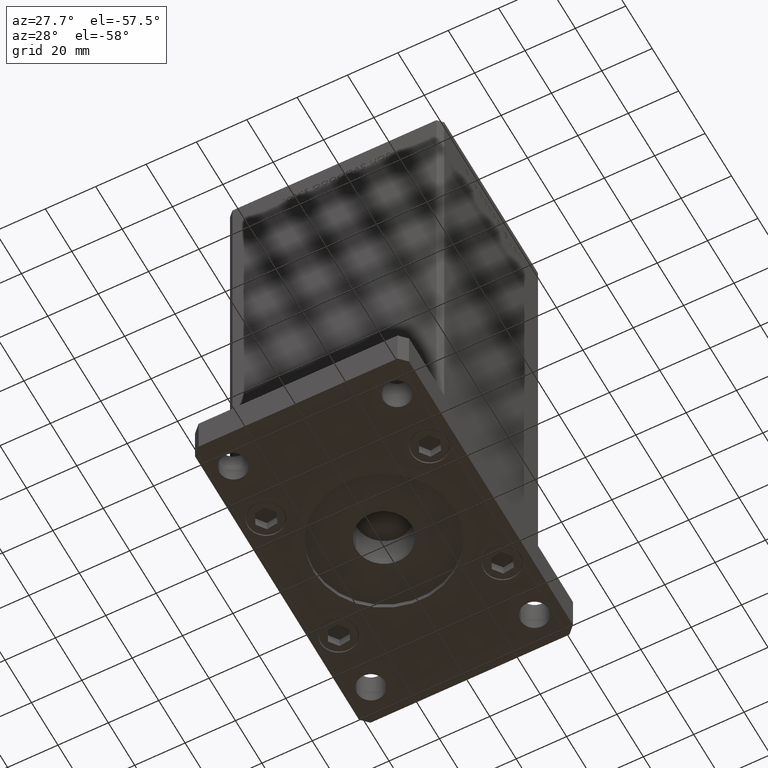
[diagram: clean part render]
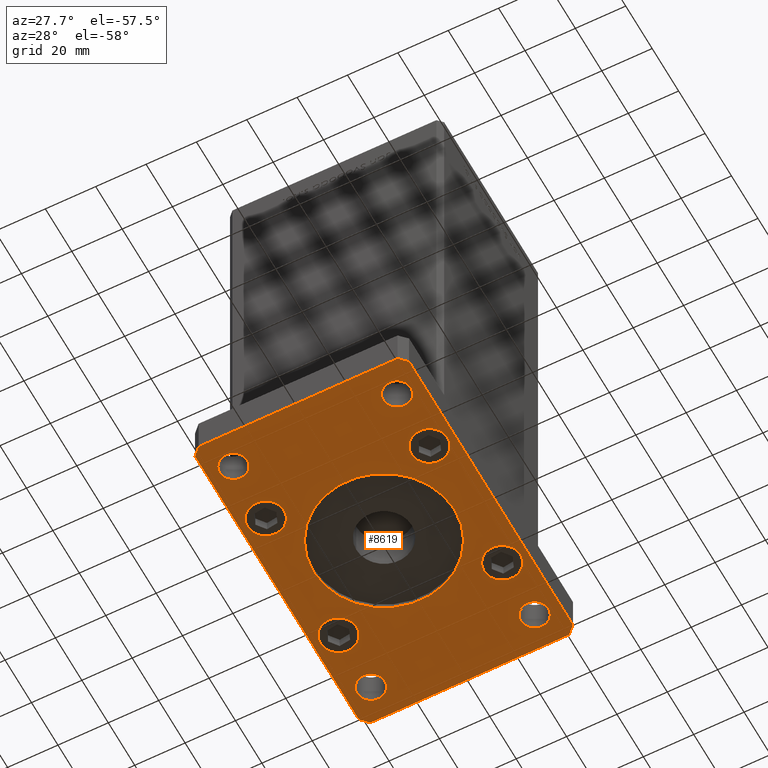
[diagram: same view with one face highlighted and labeled with its STEP entity id]
A machine part, auxiliary view. The second image highlights one B-rep face of the part: STEP entity #8619.
In plain terms, the highlighted planar face has unit normal (0, 0, 1).
Its self-contained STEP definition (entity closure, byte-faithful):
#218 = ORIENTED_EDGE ( 'NONE', *, *, #5104, .F. ) ;
#385 = ORIENTED_EDGE ( 'NONE', *, *, #1732, .T. ) ;
#557 = CARTESIAN_POINT ( 'NONE',  ( -38.00000000000000000, 52.00000000000000000, 0.000000000000000000 ) ) ;
#663 = VECTOR ( 'NONE', #10836, 1000.000000000000000 ) ;
#729 = VERTEX_POINT ( 'NONE', #39976 ) ;
#1094 = CIRCLE ( 'NONE', #19187, 7.249999999999999112 ) ;
#1253 = PLANE ( 'NONE',  #9013 ) ;
#1575 = CIRCLE ( 'NONE', #41133, 7.249999999999999112 ) ;
#1580 = AXIS2_PLACEMENT_3D ( 'NONE', #23667, #15585, #3973 ) ;
#1667 = EDGE_CURVE ( 'NONE', #50452, #33527, #34710, .T. ) ;
#1678 = ORIENTED_EDGE ( 'NONE', *, *, #25455, .T. ) ;
#1732 = EDGE_CURVE ( 'NONE', #29484, #18986, #18389, .T. ) ;
#1855 = EDGE_CURVE ( 'NONE', #18986, #29484, #17547, .T. ) ;
#1865 = DIRECTION ( 'NONE',  ( 0.7071067811865459074, 0.7071067811865491270, 0.000000000000000000 ) ) ;
#1975 = CIRCLE ( 'NONE', #8866, 5.499999999999991118 ) ;
#2219 = LINE ( 'NONE', #10317, #663 ) ;
#2808 = EDGE_CURVE ( 'NONE', #33732, #42825, #25294, .T. ) ;
#2828 = EDGE_CURVE ( 'NONE', #17192, #34115, #23802, .T. ) ;
#2845 = AXIS2_PLACEMENT_3D ( 'NONE', #24288, #16216, #52870 ) ;
#2892 = VERTEX_POINT ( 'NONE', #52114 ) ;
#3039 = DIRECTION ( 'NONE',  ( 1.000000000000000000, 0.000000000000000000, 0.000000000000000000 ) ) ;
#3250 = CARTESIAN_POINT ( 'NONE',  ( -32.50000000000000000, 52.00000000000000000, 0.000000000000000000 ) ) ;
#3306 = CARTESIAN_POINT ( 'NONE',  ( -32.50000000000000000, -27.50000000000000000, 0.000000000000000000 ) ) ;
#3624 = EDGE_LOOP ( 'NONE', ( #32131, #20168 ) ) ;
#3929 = CARTESIAN_POINT ( 'NONE',  ( 37.99999999999999289, 51.99999999999999289, 0.000000000000000000 ) ) ;
#3973 = DIRECTION ( 'NONE',  ( 1.000000000000000000, 0.000000000000000000, 0.000000000000000000 ) ) ;
#4020 = DIRECTION ( 'NONE',  ( 1.000000000000000000, 0.000000000000000000, 0.000000000000000000 ) ) ;
#4032 = EDGE_CURVE ( 'NONE', #42825, #33732, #14138, .T. ) ;
#4312 = ORIENTED_EDGE ( 'NONE', *, *, #23713, .F. ) ;
#5035 = DIRECTION ( 'NONE',  ( 0.000000000000000000, 0.000000000000000000, 1.000000000000000000 ) ) ;
#5104 = EDGE_CURVE ( 'NONE', #50167, #5231, #35403, .T. ) ;
#5231 = VERTEX_POINT ( 'NONE', #45074 ) ;
#5251 = EDGE_LOOP ( 'NONE', ( #385, #43917 ) ) ;
#5772 = DIRECTION ( 'NONE',  ( 0.000000000000000000, 0.000000000000000000, 1.000000000000000000 ) ) ;
#5838 = DIRECTION ( 'NONE',  ( 0.000000000000000000, 0.000000000000000000, 1.000000000000000000 ) ) ;
#5868 = EDGE_CURVE ( 'NONE', #37250, #41574, #28856, .T. ) ;
#6084 = CARTESIAN_POINT ( 'NONE',  ( 42.50000000000000000, 62.00000000000000711, 0.000000000000000000 ) ) ;
#6202 = CIRCLE ( 'NONE', #13097, 7.249999999999999112 ) ;
#6249 = CARTESIAN_POINT ( 'NONE',  ( -32.50000000000000711, 27.50000000000000000, 0.000000000000000000 ) ) ;
#6252 = DIRECTION ( 'NONE',  ( 1.000000000000000000, 0.000000000000000000, 0.000000000000000000 ) ) ;
#6398 = CARTESIAN_POINT ( 'NONE',  ( 27.00000000000001421, 51.99999999999999289, 0.000000000000000000 ) ) ;
#6418 = DIRECTION ( 'NONE',  ( -1.000000000000000000, -3.513364001978340512E-16, 0.000000000000000000 ) ) ;
#7477 = CARTESIAN_POINT ( 'NONE',  ( -39.75000000000000711, 27.50000000000000000, 0.000000000000000000 ) ) ;
#7885 = CARTESIAN_POINT ( 'NONE',  ( 42.50000000000000000, -61.99999999999988631, 0.000000000000000000 ) ) ;
#8084 = VERTEX_POINT ( 'NONE', #48635 ) ;
#8619 = ADVANCED_FACE ( 'NONE', ( #40075, #36035, #52501, #48706, #11789, #44640, #36561, #24188, #53032, #16110 ), #1253, .F. ) ;
#8866 = AXIS2_PLACEMENT_3D ( 'NONE', #18147, #34552, #6252 ) ;
#9013 = AXIS2_PLACEMENT_3D ( 'NONE', #37632, #5035, #34118 ) ;
#9296 = CARTESIAN_POINT ( 'NONE',  ( 37.99999999999997868, -52.00000000000000711, 0.000000000000000000 ) ) ;
#9423 = EDGE_LOOP ( 'NONE', ( #39081, #26647 ) ) ;
#9783 = DIRECTION ( 'NONE',  ( 0.000000000000000000, 0.000000000000000000, 1.000000000000000000 ) ) ;
#10191 = AXIS2_PLACEMENT_3D ( 'NONE', #3306, #52388, #15468 ) ;
#10317 = CARTESIAN_POINT ( 'NONE',  ( -42.49999999999999289, -62.00000000000001421, 0.000000000000000000 ) ) ;
#10725 = CARTESIAN_POINT ( 'NONE',  ( 39.50000000000002842, 65.00000000000002842, 0.000000000000000000 ) ) ;
#10836 = DIRECTION ( 'NONE',  ( 0.7071067811865483499, -0.7071067811865466846, 0.000000000000000000 ) ) ;
#11340 = ORIENTED_EDGE ( 'NONE', *, *, #31188, .T. ) ;
#11672 = ORIENTED_EDGE ( 'NONE', *, *, #1667, .T. ) ;
#11734 = EDGE_LOOP ( 'NONE', ( #11340, #11672 ) ) ;
#11789 = FACE_BOUND ( 'NONE', #3624, .T. ) ;
#12322 = AXIS2_PLACEMENT_3D ( 'NONE', #41042, #25150, #28914 ) ;
#12372 = LINE ( 'NONE', #16426, #38470 ) ;
#12516 = CARTESIAN_POINT ( 'NONE',  ( -42.50000000000002132, 62.00000000000000711, 0.000000000000000000 ) ) ;
#12762 = CIRCLE ( 'NONE', #10191, 7.249999999999999112 ) ;
#12804 = VERTEX_POINT ( 'NONE', #7477 ) ;
#12905 = EDGE_CURVE ( 'NONE', #729, #8084, #35766, .T. ) ;
#12915 = CARTESIAN_POINT ( 'NONE',  ( 32.50000000000000000, 51.99999999999999289, 0.000000000000000000 ) ) ;
#13097 = AXIS2_PLACEMENT_3D ( 'NONE', #28439, #19322, #35730 ) ;
#13400 = CARTESIAN_POINT ( 'NONE',  ( 39.50000000000001421, -64.99999999999988631, 0.000000000000000000 ) ) ;
#13800 = AXIS2_PLACEMENT_3D ( 'NONE', #12915, #49564, #4020 ) ;
#14138 = CIRCLE ( 'NONE', #27884, 5.499999999999994671 ) ;
#14182 = CARTESIAN_POINT ( 'NONE',  ( -32.49999999999997868, -52.00000000000000711, 0.000000000000000000 ) ) ;
#15039 = EDGE_CURVE ( 'NONE', #52323, #44048, #43602, .T. ) ;
#15216 = CARTESIAN_POINT ( 'NONE',  ( -39.50000000000003553, 65.00000000000000000, 0.000000000000000000 ) ) ;
#15235 = VECTOR ( 'NONE', #6418, 1000.000000000000000 ) ;
#15413 = EDGE_LOOP ( 'NONE', ( #1678, #44969 ) ) ;
#15468 = DIRECTION ( 'NONE',  ( 1.000000000000000000, 0.000000000000000000, 0.000000000000000000 ) ) ;
#15585 = DIRECTION ( 'NONE',  ( 0.000000000000000000, 0.000000000000000000, 1.000000000000000000 ) ) ;
#15970 = EDGE_CURVE ( 'NONE', #34748, #24006, #12372, .T. ) ;
#16043 = ORIENTED_EDGE ( 'NONE', *, *, #21395, .T. ) ;
#16110 = FACE_BOUND ( 'NONE', #47382, .T. ) ;
#16216 = DIRECTION ( 'NONE',  ( 0.000000000000000000, 0.000000000000000000, 1.000000000000000000 ) ) ;
#16426 = CARTESIAN_POINT ( 'NONE',  ( -39.50000000000000000, -65.00000000000000000, 0.000000000000000000 ) ) ;
#16534 = AXIS2_PLACEMENT_3D ( 'NONE', #50883, #22839, #38739 ) ;
#16576 = ORIENTED_EDGE ( 'NONE', *, *, #28024, .F. ) ;
#16979 = EDGE_CURVE ( 'NONE', #2892, #34748, #2219, .T. ) ;
#17192 = VERTEX_POINT ( 'NONE', #26098 ) ;
#17515 = VERTEX_POINT ( 'NONE', #51357 ) ;
#17547 = CIRCLE ( 'NONE', #2845, 7.249999999999999112 ) ;
#17880 = DIRECTION ( 'NONE',  ( 0.000000000000000000, 0.000000000000000000, 1.000000000000000000 ) ) ;
#17985 = CARTESIAN_POINT ( 'NONE',  ( 32.49999999999997868, -52.00000000000000711, 0.000000000000000000 ) ) ;
#18147 = CARTESIAN_POINT ( 'NONE',  ( 32.50000000000000000, 51.99999999999999289, 0.000000000000000000 ) ) ;
#18389 = CIRCLE ( 'NONE', #35541, 7.249999999999999112 ) ;
#18440 = ORIENTED_EDGE ( 'NONE', *, *, #31943, .F. ) ;
#18816 = AXIS2_PLACEMENT_3D ( 'NONE', #33195, #49654, #33726 ) ;
#18986 = VERTEX_POINT ( 'NONE', #50439 ) ;
#19136 = CARTESIAN_POINT ( 'NONE',  ( -39.50000000000003553, 65.00000000000000000, 0.000000000000000000 ) ) ;
#19187 = AXIS2_PLACEMENT_3D ( 'NONE', #6249, #17880, #25945 ) ;
#19322 = DIRECTION ( 'NONE',  ( 0.000000000000000000, 0.000000000000000000, 1.000000000000000000 ) ) ;
#19794 = CARTESIAN_POINT ( 'NONE',  ( -39.50000000000000000, -65.00000000000000000, 0.000000000000000000 ) ) ;
#19976 = DIRECTION ( 'NONE',  ( 0.000000000000000000, 0.000000000000000000, 1.000000000000000000 ) ) ;
#20054 = CARTESIAN_POINT ( 'NONE',  ( 42.50000000000000000, 62.00000000000000711, 0.000000000000000000 ) ) ;
#20168 = ORIENTED_EDGE ( 'NONE', *, *, #4032, .T. ) ;
#20305 = ORIENTED_EDGE ( 'NONE', *, *, #22902, .F. ) ;
#20566 = EDGE_LOOP ( 'NONE', ( #23724, #46975 ) ) ;
#21395 = EDGE_CURVE ( 'NONE', #41574, #37250, #30894, .T. ) ;
#21404 = LINE ( 'NONE', #12516, #43771 ) ;
#21419 = EDGE_LOOP ( 'NONE', ( #46801, #23800, #18440, #218, #20305, #16576, #22171, #4312 ) ) ;
#21517 = CARTESIAN_POINT ( 'NONE',  ( 0.000000000000000000, 0.000000000000000000, 0.000000000000000000 ) ) ;
#21751 = VERTEX_POINT ( 'NONE', #6398 ) ;
#22030 = AXIS2_PLACEMENT_3D ( 'NONE', #14182, #5838, #39212 ) ;
#22171 = ORIENTED_EDGE ( 'NONE', *, *, #2828, .F. ) ;
#22270 = LINE ( 'NONE', #6084, #38646 ) ;
#22839 = DIRECTION ( 'NONE',  ( 0.000000000000000000, 0.000000000000000000, 1.000000000000000000 ) ) ;
#22902 = EDGE_CURVE ( 'NONE', #17515, #50167, #40080, .T. ) ;
#23667 = CARTESIAN_POINT ( 'NONE',  ( -32.49999999999997868, -52.00000000000000711, 0.000000000000000000 ) ) ;
#23713 = EDGE_CURVE ( 'NONE', #24006, #17192, #26394, .T. ) ;
#23724 = ORIENTED_EDGE ( 'NONE', *, *, #36047, .T. ) ;
#23800 = ORIENTED_EDGE ( 'NONE', *, *, #16979, .F. ) ;
#23802 = LINE ( 'NONE', #7885, #36467 ) ;
#24006 = VERTEX_POINT ( 'NONE', #13400 ) ;
#24188 = FACE_BOUND ( 'NONE', #5251, .T. ) ;
#24288 = CARTESIAN_POINT ( 'NONE',  ( 32.50000000000000000, 27.50000000000000000, 0.000000000000000000 ) ) ;
#24769 = DIRECTION ( 'NONE',  ( 1.000000000000000000, 1.405345600791337191E-15, 0.000000000000000000 ) ) ;
#25150 = DIRECTION ( 'NONE',  ( 0.000000000000000000, 0.000000000000000000, 1.000000000000000000 ) ) ;
#25181 = ORIENTED_EDGE ( 'NONE', *, *, #5868, .T. ) ;
#25294 = CIRCLE ( 'NONE', #32157, 5.499999999999994671 ) ;
#25455 = EDGE_CURVE ( 'NONE', #8084, #729, #32518, .T. ) ;
#25620 = VECTOR ( 'NONE', #1865, 1000.000000000000114 ) ;
#25732 = CARTESIAN_POINT ( 'NONE',  ( -32.50000000000000711, 27.50000000000000000, 0.000000000000000000 ) ) ;
#25754 = AXIS2_PLACEMENT_3D ( 'NONE', #46183, #5772, #30552 ) ;
#25945 = DIRECTION ( 'NONE',  ( 1.000000000000000000, 0.000000000000000000, 0.000000000000000000 ) ) ;
#26098 = CARTESIAN_POINT ( 'NONE',  ( 42.50000000000000000, -61.99999999999988631, 0.000000000000000000 ) ) ;
#26394 = LINE ( 'NONE', #34203, #25620 ) ;
#26647 = ORIENTED_EDGE ( 'NONE', *, *, #47929, .T. ) ;
#26816 = CARTESIAN_POINT ( 'NONE',  ( 28.00000000000000000, 3.429011037612589276E-15, 0.000000000000000000 ) ) ;
#27884 = AXIS2_PLACEMENT_3D ( 'NONE', #3250, #19976, #36388 ) ;
#27921 = VECTOR ( 'NONE', #52409, 1000.000000000000000 ) ;
#28024 = EDGE_CURVE ( 'NONE', #34115, #17515, #22270, .T. ) ;
#28221 = DIRECTION ( 'NONE',  ( 1.000000000000000000, 0.000000000000000000, 0.000000000000000000 ) ) ;
#28439 = CARTESIAN_POINT ( 'NONE',  ( 32.50000000000000000, -27.50000000000000000, 0.000000000000000000 ) ) ;
#28627 = DIRECTION ( 'NONE',  ( 0.000000000000000000, 1.000000000000000000, 0.000000000000000000 ) ) ;
#28856 = CIRCLE ( 'NONE', #44299, 5.499999999999998224 ) ;
#28905 = CARTESIAN_POINT ( 'NONE',  ( 25.25000000000000000, -27.50000000000000000, 0.000000000000000000 ) ) ;
#28914 = DIRECTION ( 'NONE',  ( 1.000000000000000000, 0.000000000000000000, 0.000000000000000000 ) ) ;
#28940 = DIRECTION ( 'NONE',  ( 2.238352872228137677E-16, -1.000000000000000000, 0.000000000000000000 ) ) ;
#29484 = VERTEX_POINT ( 'NONE', #51028 ) ;
#30077 = DIRECTION ( 'NONE',  ( -0.7071067811865417996, 0.7071067811865532349, 0.000000000000000000 ) ) ;
#30385 = EDGE_CURVE ( 'NONE', #44048, #52323, #44584, .T. ) ;
#30552 = DIRECTION ( 'NONE',  ( 1.000000000000000000, 0.000000000000000000, 0.000000000000000000 ) ) ;
#30871 = EDGE_CURVE ( 'NONE', #12804, #52447, #1575, .T. ) ;
#30894 = CIRCLE ( 'NONE', #25754, 5.499999999999998224 ) ;
#31188 = EDGE_CURVE ( 'NONE', #33527, #50452, #12762, .T. ) ;
#31299 = DIRECTION ( 'NONE',  ( 1.000000000000000000, 0.000000000000000000, 0.000000000000000000 ) ) ;
#31943 = EDGE_CURVE ( 'NONE', #5231, #2892, #21404, .T. ) ;
#32131 = ORIENTED_EDGE ( 'NONE', *, *, #2808, .T. ) ;
#32157 = AXIS2_PLACEMENT_3D ( 'NONE', #44252, #39961, #3039 ) ;
#32518 = CIRCLE ( 'NONE', #1580, 5.499999999999994671 ) ;
#33195 = CARTESIAN_POINT ( 'NONE',  ( 0.000000000000000000, 0.000000000000000000, 0.000000000000000000 ) ) ;
#33361 = DIRECTION ( 'NONE',  ( 0.000000000000000000, 0.000000000000000000, -1.000000000000000000 ) ) ;
#33527 = VERTEX_POINT ( 'NONE', #38853 ) ;
#33726 = DIRECTION ( 'NONE',  ( -1.000000000000000000, 0.000000000000000000, 0.000000000000000000 ) ) ;
#33732 = VERTEX_POINT ( 'NONE', #557 ) ;
#33998 = EDGE_LOOP ( 'NONE', ( #47841, #51666 ) ) ;
#34115 = VERTEX_POINT ( 'NONE', #20054 ) ;
#34118 = DIRECTION ( 'NONE',  ( 1.000000000000000000, 0.000000000000000000, -0.000000000000000000 ) ) ;
#34203 = CARTESIAN_POINT ( 'NONE',  ( 39.50000000000001421, -64.99999999999988631, 0.000000000000000000 ) ) ;
#34552 = DIRECTION ( 'NONE',  ( 0.000000000000000000, 0.000000000000000000, 1.000000000000000000 ) ) ;
#34654 = DIRECTION ( 'NONE',  ( 0.000000000000000000, 0.000000000000000000, 1.000000000000000000 ) ) ;
#34710 = CIRCLE ( 'NONE', #12322, 7.249999999999999112 ) ;
#34748 = VERTEX_POINT ( 'NONE', #19794 ) ;
#35283 = CIRCLE ( 'NONE', #13800, 5.499999999999991118 ) ;
#35403 = LINE ( 'NONE', #15216, #27921 ) ;
#35541 = AXIS2_PLACEMENT_3D ( 'NONE', #47217, #9783, #31299 ) ;
#35730 = DIRECTION ( 'NONE',  ( 1.000000000000000000, 0.000000000000000000, 0.000000000000000000 ) ) ;
#35766 = CIRCLE ( 'NONE', #22030, 5.499999999999994671 ) ;
#36035 = FACE_OUTER_BOUND ( 'NONE', #21419, .T. ) ;
#36047 = EDGE_CURVE ( 'NONE', #21751, #48395, #35283, .T. ) ;
#36388 = DIRECTION ( 'NONE',  ( 1.000000000000000000, 0.000000000000000000, 0.000000000000000000 ) ) ;
#36467 = VECTOR ( 'NONE', #28627, 1000.000000000000000 ) ;
#36561 = FACE_BOUND ( 'NONE', #40549, .T. ) ;
#37250 = VERTEX_POINT ( 'NONE', #9296 ) ;
#37632 = CARTESIAN_POINT ( 'NONE',  ( 0.000000000000000000, 0.000000000000000000, 0.000000000000000000 ) ) ;
#38470 = VECTOR ( 'NONE', #24769, 1000.000000000000000 ) ;
#38646 = VECTOR ( 'NONE', #30077, 1000.000000000000000 ) ;
#38739 = DIRECTION ( 'NONE',  ( 1.000000000000000000, 0.000000000000000000, 0.000000000000000000 ) ) ;
#38853 = CARTESIAN_POINT ( 'NONE',  ( -39.75000000000000000, -27.50000000000000000, 0.000000000000000000 ) ) ;
#39081 = ORIENTED_EDGE ( 'NONE', *, *, #30871, .T. ) ;
#39212 = DIRECTION ( 'NONE',  ( 1.000000000000000000, 0.000000000000000000, 0.000000000000000000 ) ) ;
#39820 = ORIENTED_EDGE ( 'NONE', *, *, #40863, .T. ) ;
#39961 = DIRECTION ( 'NONE',  ( 0.000000000000000000, 0.000000000000000000, 1.000000000000000000 ) ) ;
#39976 = CARTESIAN_POINT ( 'NONE',  ( -26.99999999999998579, -52.00000000000000711, 0.000000000000000000 ) ) ;
#40075 = FACE_BOUND ( 'NONE', #33998, .T. ) ;
#40080 = LINE ( 'NONE', #10725, #15235 ) ;
#40199 = CARTESIAN_POINT ( 'NONE',  ( 39.75000000000000000, -27.50000000000000000, 0.000000000000000000 ) ) ;
#40321 = CARTESIAN_POINT ( 'NONE',  ( -28.00000000000000000, 0.000000000000000000, 0.000000000000000000 ) ) ;
#40549 = EDGE_LOOP ( 'NONE', ( #44522, #39820 ) ) ;
#40863 = EDGE_CURVE ( 'NONE', #42350, #46935, #44849, .T. ) ;
#41042 = CARTESIAN_POINT ( 'NONE',  ( -32.50000000000000000, -27.50000000000000000, 0.000000000000000000 ) ) ;
#41133 = AXIS2_PLACEMENT_3D ( 'NONE', #25732, #44916, #28221 ) ;
#41574 = VERTEX_POINT ( 'NONE', #51015 ) ;
#42350 = VERTEX_POINT ( 'NONE', #40199 ) ;
#42825 = VERTEX_POINT ( 'NONE', #50676 ) ;
#43602 = CIRCLE ( 'NONE', #52220, 28.00000000000000000 ) ;
#43726 = EDGE_CURVE ( 'NONE', #48395, #21751, #1975, .T. ) ;
#43771 = VECTOR ( 'NONE', #28940, 1000.000000000000000 ) ;
#43917 = ORIENTED_EDGE ( 'NONE', *, *, #1855, .T. ) ;
#44048 = VERTEX_POINT ( 'NONE', #40321 ) ;
#44252 = CARTESIAN_POINT ( 'NONE',  ( -32.50000000000000000, 52.00000000000000000, 0.000000000000000000 ) ) ;
#44299 = AXIS2_PLACEMENT_3D ( 'NONE', #17985, #34654, #51104 ) ;
#44522 = ORIENTED_EDGE ( 'NONE', *, *, #47478, .T. ) ;
#44584 = CIRCLE ( 'NONE', #18816, 28.00000000000000000 ) ;
#44640 = FACE_BOUND ( 'NONE', #11734, .T. ) ;
#44849 = CIRCLE ( 'NONE', #16534, 7.249999999999999112 ) ;
#44916 = DIRECTION ( 'NONE',  ( 0.000000000000000000, 0.000000000000000000, 1.000000000000000000 ) ) ;
#44969 = ORIENTED_EDGE ( 'NONE', *, *, #12905, .T. ) ;
#45074 = CARTESIAN_POINT ( 'NONE',  ( -42.50000000000002132, 62.00000000000000711, 0.000000000000000000 ) ) ;
#45578 = CARTESIAN_POINT ( 'NONE',  ( -25.25000000000000711, 27.50000000000000000, 0.000000000000000000 ) ) ;
#45757 = DIRECTION ( 'NONE',  ( -1.000000000000000000, 0.000000000000000000, 0.000000000000000000 ) ) ;
#46183 = CARTESIAN_POINT ( 'NONE',  ( 32.49999999999997868, -52.00000000000000711, 0.000000000000000000 ) ) ;
#46801 = ORIENTED_EDGE ( 'NONE', *, *, #15970, .F. ) ;
#46935 = VERTEX_POINT ( 'NONE', #28905 ) ;
#46975 = ORIENTED_EDGE ( 'NONE', *, *, #43726, .T. ) ;
#47217 = CARTESIAN_POINT ( 'NONE',  ( 32.50000000000000000, 27.50000000000000000, 0.000000000000000000 ) ) ;
#47382 = EDGE_LOOP ( 'NONE', ( #16043, #25181 ) ) ;
#47478 = EDGE_CURVE ( 'NONE', #46935, #42350, #6202, .T. ) ;
#47841 = ORIENTED_EDGE ( 'NONE', *, *, #30385, .F. ) ;
#47929 = EDGE_CURVE ( 'NONE', #52447, #12804, #1094, .T. ) ;
#48395 = VERTEX_POINT ( 'NONE', #3929 ) ;
#48635 = CARTESIAN_POINT ( 'NONE',  ( -37.99999999999997868, -52.00000000000000711, 0.000000000000000000 ) ) ;
#48706 = FACE_BOUND ( 'NONE', #20566, .T. ) ;
#49564 = DIRECTION ( 'NONE',  ( 0.000000000000000000, 0.000000000000000000, 1.000000000000000000 ) ) ;
#49654 = DIRECTION ( 'NONE',  ( 0.000000000000000000, 0.000000000000000000, -1.000000000000000000 ) ) ;
#49827 = CARTESIAN_POINT ( 'NONE',  ( -25.25000000000000000, -27.50000000000000000, 0.000000000000000000 ) ) ;
#50167 = VERTEX_POINT ( 'NONE', #19136 ) ;
#50439 = CARTESIAN_POINT ( 'NONE',  ( 39.75000000000000000, 27.50000000000000000, 0.000000000000000000 ) ) ;
#50452 = VERTEX_POINT ( 'NONE', #49827 ) ;
#50676 = CARTESIAN_POINT ( 'NONE',  ( -27.00000000000000711, 52.00000000000000000, 0.000000000000000000 ) ) ;
#50883 = CARTESIAN_POINT ( 'NONE',  ( 32.50000000000000000, -27.50000000000000000, 0.000000000000000000 ) ) ;
#51015 = CARTESIAN_POINT ( 'NONE',  ( 26.99999999999998579, -52.00000000000000711, 0.000000000000000000 ) ) ;
#51028 = CARTESIAN_POINT ( 'NONE',  ( 25.25000000000000000, 27.50000000000000000, 0.000000000000000000 ) ) ;
#51104 = DIRECTION ( 'NONE',  ( 1.000000000000000000, 0.000000000000000000, 0.000000000000000000 ) ) ;
#51357 = CARTESIAN_POINT ( 'NONE',  ( 39.50000000000002842, 65.00000000000002842, 0.000000000000000000 ) ) ;
#51666 = ORIENTED_EDGE ( 'NONE', *, *, #15039, .F. ) ;
#52114 = CARTESIAN_POINT ( 'NONE',  ( -42.49999999999999289, -62.00000000000001421, 0.000000000000000000 ) ) ;
#52220 = AXIS2_PLACEMENT_3D ( 'NONE', #21517, #33361, #45757 ) ;
#52323 = VERTEX_POINT ( 'NONE', #26816 ) ;
#52388 = DIRECTION ( 'NONE',  ( 0.000000000000000000, 0.000000000000000000, 1.000000000000000000 ) ) ;
#52409 = DIRECTION ( 'NONE',  ( -0.7071067811865466846, -0.7071067811865483499, 0.000000000000000000 ) ) ;
#52447 = VERTEX_POINT ( 'NONE', #45578 ) ;
#52501 = FACE_BOUND ( 'NONE', #15413, .T. ) ;
#52870 = DIRECTION ( 'NONE',  ( 1.000000000000000000, 0.000000000000000000, 0.000000000000000000 ) ) ;
#53032 = FACE_BOUND ( 'NONE', #9423, .T. ) ;